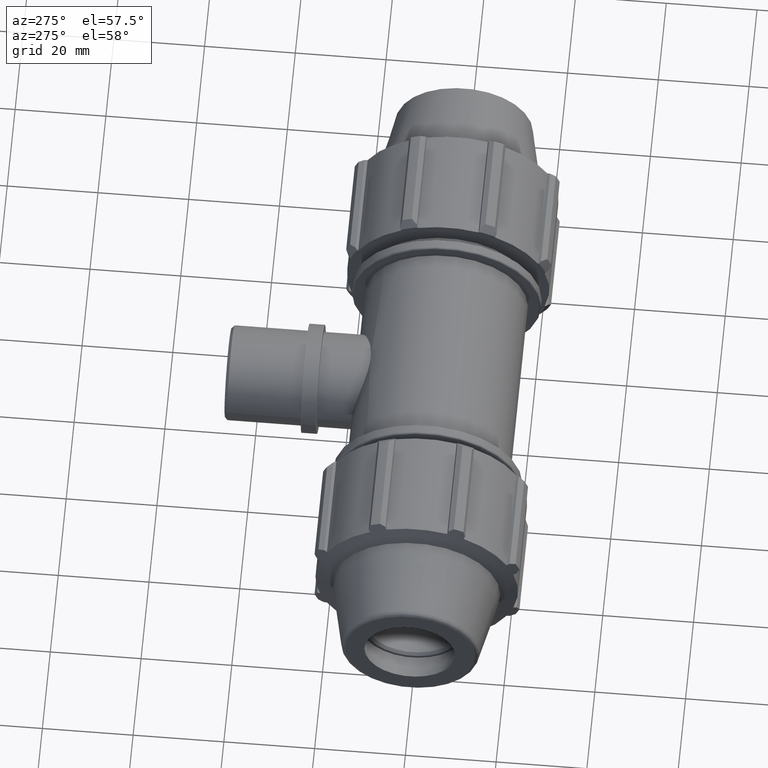
[diagram: clean part render]
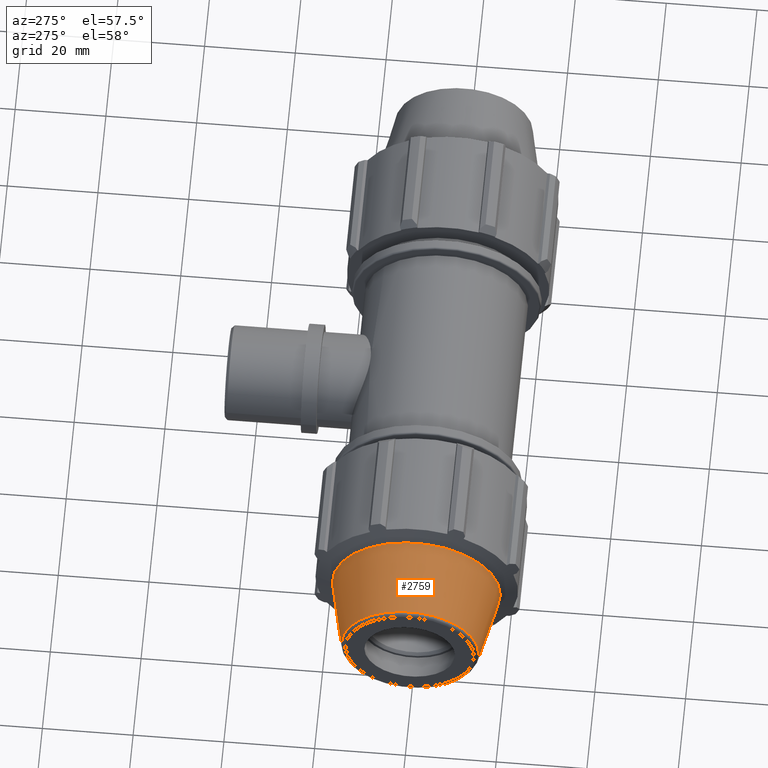
[diagram: same view with one face highlighted and labeled with its STEP entity id]
A machine part, auxiliary view. The second image highlights one B-rep face of the part: STEP entity #2759.
In plain terms, the highlighted conical surface has half-angle 12 deg.
Its self-contained STEP definition (entity closure, byte-faithful):
#558=CONICAL_SURFACE('',#2976,16.7599683306278,12.);
#591=FACE_BOUND('',#867,.T.);
#693=FACE_OUTER_BOUND('',#866,.T.);
#866=EDGE_LOOP('',(#2103));
#867=EDGE_LOOP('',(#2104));
#1022=CIRCLE('',#2930,18.5199366612556);
#1029=CIRCLE('',#2974,15.1683635675388);
#1215=VERTEX_POINT('',#4323);
#1222=VERTEX_POINT('',#4397);
#1513=EDGE_CURVE('',#1215,#1215,#1022,.T.);
#1543=EDGE_CURVE('',#1222,#1222,#1029,.T.);
#2103=ORIENTED_EDGE('',*,*,#1513,.F.);
#2104=ORIENTED_EDGE('',*,*,#1543,.T.);
#2759=ADVANCED_FACE('',(#693,#591),#558,.T.);
#2930=AXIS2_PLACEMENT_3D('',#4324,#3368,#3369);
#2974=AXIS2_PLACEMENT_3D('',#4398,#3479,#3480);
#2976=AXIS2_PLACEMENT_3D('',#4401,#3483,#3484);
#3368=DIRECTION('center_axis',(1.,-4.01311517903141E-16,0.));
#3369=DIRECTION('ref_axis',(0.,0.,-1.));
#3479=DIRECTION('center_axis',(1.,-5.85546631807323E-16,1.51804458734939E-31));
#3480=DIRECTION('ref_axis',(-5.85546631807323E-16,-1.,3.06161699786839E-17));
#3483=DIRECTION('center_axis',(1.,-4.01311517903141E-16,0.));
#3484=DIRECTION('ref_axis',(0.,1.,0.));
#4323=CARTESIAN_POINT('',(-52.44,18.5199366612556,0.));
#4324=CARTESIAN_POINT('Origin',(-52.44,2.10447759988407E-14,0.));
#4397=CARTESIAN_POINT('',(-68.2079116908178,15.1683635675388,-9.28794394564486E-16));
#4398=CARTESIAN_POINT('Origin',(-68.2079116908178,2.88657986402541E-14,
-2.32198598641122E-15));
#4401=CARTESIAN_POINT('Origin',(-60.72,2.43676353670788E-14,0.));